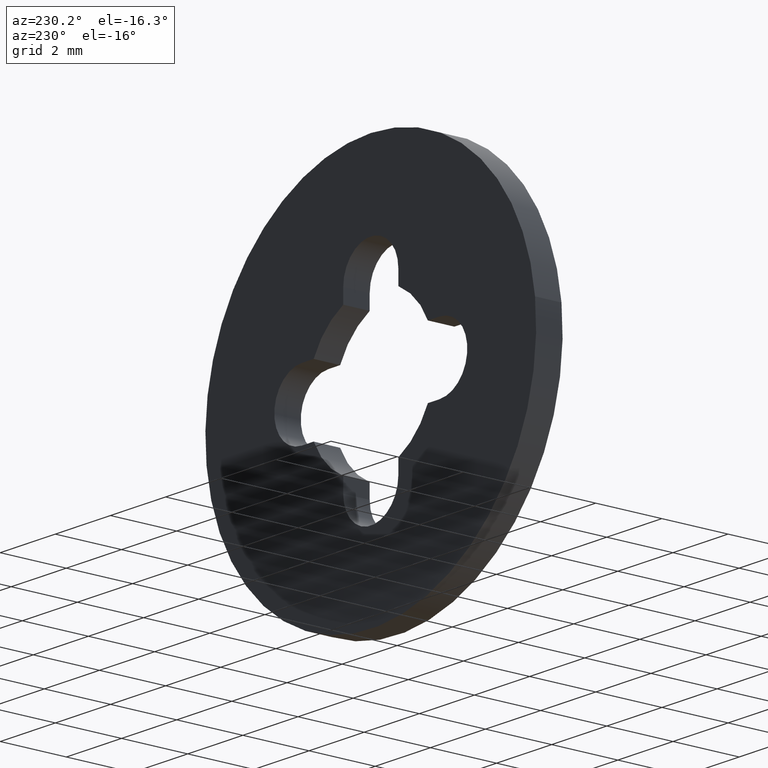
[diagram: clean part render]
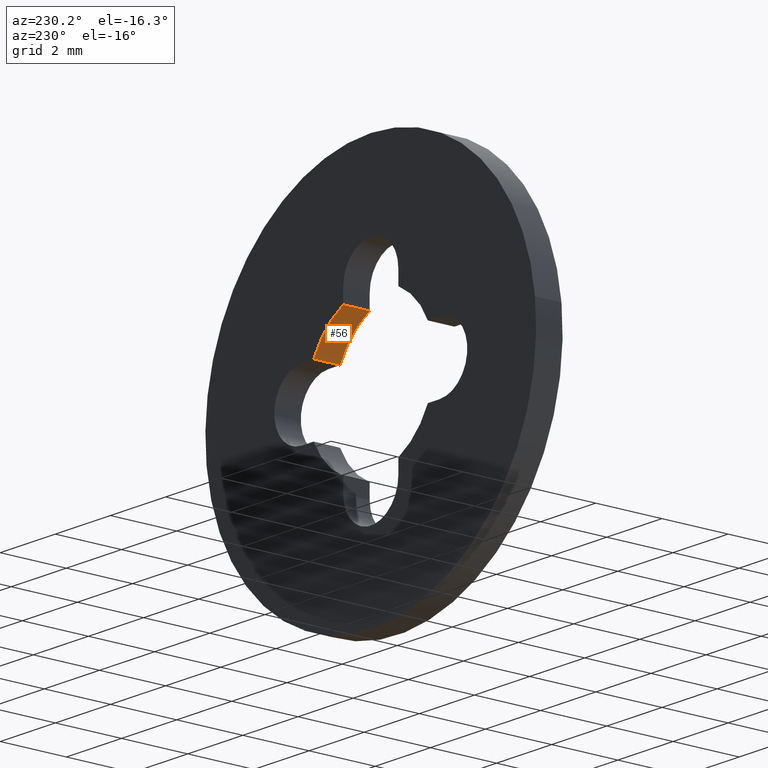
[diagram: same view with one face highlighted and labeled with its STEP entity id]
A machine part, auxiliary view. The second image highlights one B-rep face of the part: STEP entity #56.
In plain terms, the highlighted cylindrical surface (partial cylindrical patch) has radius 2.3 mm, axis along (0, -1, 0).
Its self-contained STEP definition (entity closure, byte-faithful):
#56=ADVANCED_FACE('',(#223),#222,.F.);
#222=CYLINDRICAL_SURFACE('',#347,2.30000000000E+00);
#223=FACE_OUTER_BOUND('',#348,.T.);
#344=CARTESIAN_POINT('',(-3.64672993124E-15,-2.05000000000E-02,-5.01969873628E-15));
#345=DIRECTION('',(3.04648072532E-16,-1.00000000000E+00,7.36161289514E-16));
#346=DIRECTION('',(-4.05124447833E-01,-7.96464343753E-16,-9.14261549978E-01));
#347=AXIS2_PLACEMENT_3D('',#344,#345,#346);
#348=EDGE_LOOP('',(#458,#459,#460,#461));
#458=ORIENTED_EDGE('',*,*,#513,.T.);
#459=ORIENTED_EDGE('',*,*,#528,.F.);
#460=ORIENTED_EDGE('',*,*,#481,.F.);
#461=ORIENTED_EDGE('',*,*,#529,.T.);
#481=EDGE_CURVE('',#561,#568,#569,.T.);
#513=EDGE_CURVE('',#687,#785,#792,.T.);
#528=EDGE_CURVE('',#568,#785,#882,.T.);
#529=EDGE_CURVE('',#561,#687,#888,.T.);
#561=VERTEX_POINT('',#927);
#568=VERTEX_POINT('',#931);
#569=CIRCLE('',#935,2.30000000000E+00);
#687=VERTEX_POINT('',#1009);
#785=VERTEX_POINT('',#1072);
#792=CIRCLE('',#1079,2.30000000000E+00);
#882=LINE('',#1122,#1123);
#888=LINE('',#1125,#1126);
#927=CARTESIAN_POINT('',(2.07123151772E+00,8.00000000000E-01,1.00000000000E+00));
#931=CARTESIAN_POINT('',(1.00000000000E+00,8.00000000000E-01,2.07123151772E+00));
#932=CARTESIAN_POINT('',(-6.66133814775E-16,8.00000000000E-01,-4.44089209850E-16));
#933=DIRECTION('',(-2.38971064070E-17,-1.00000000000E+00,4.94964399725E-17));
#934=DIRECTION('',(-9.00535442487E-01,4.62223186653E-32,-4.34782608696E-01));
#935=AXIS2_PLACEMENT_3D('',#932,#933,#934);
#1009=CARTESIAN_POINT('',(2.07123151772E+00,0.00000000000E+00,1.00000000000E+00));
#1072=CARTESIAN_POINT('',(1.00000000000E+00,0.00000000000E+00,2.07123151772E+00));
#1076=CARTESIAN_POINT('',(-6.66133814775E-16,0.00000000000E+00,-4.44089209850E-16));
#1077=DIRECTION('',(0.00000000000E+00,-1.00000000000E+00,0.00000000000E+00));
#1078=DIRECTION('',(-9.00535442487E-01,-0.00000000000E+00,-4.34782608696E-01));
#1079=AXIS2_PLACEMENT_3D('',#1076,#1077,#1078);
#1122=CARTESIAN_POINT('',(1.00000000000E+00,8.00000000000E-01,2.07123151772E+00));
#1123=VECTOR('',#1124,8.00000000000E-01);
#1124=DIRECTION('',(0.00000000000E+00,-1.00000000000E+00,0.00000000000E+00));
#1125=CARTESIAN_POINT('',(2.07123151772E+00,8.00000000000E-01,1.00000000000E+00));
#1126=VECTOR('',#1127,8.00000000000E-01);
#1127=DIRECTION('',(0.00000000000E+00,-1.00000000000E+00,0.00000000000E+00));